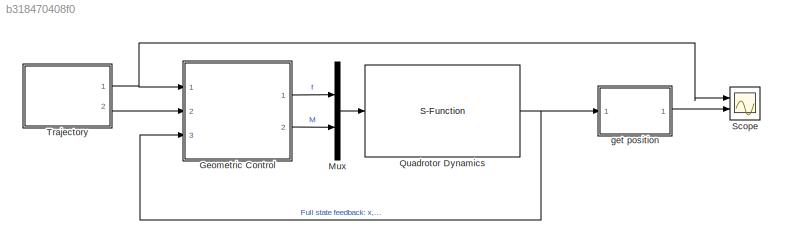
MODEL slx_b318470408f0
KIND model
CONFIG AbsTol = auto
CONFIG EnableMultiTasking = on
CONFIG FixedStep = 0.001
CONFIG InitFcn = param
CONFIG MaxStep = auto
CONFIG MinStep = auto
CONFIG RelTol = 1e-3
CONFIG SampleTimeConstraint = Unconstrained
CONFIG Solver = ode45
CONFIG SolverName = ode45
CONFIG StartTime = 0.0
CONFIG StopTime = 20
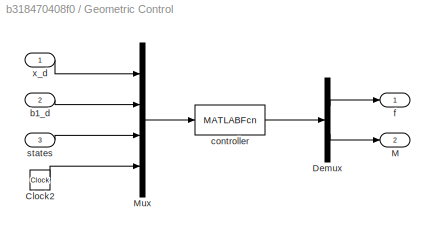
BLOCK [SubSystem] Geometric Control
  Ports = [3, 2]
  RequestExecContextInheritance = off
BLOCK [Clock] Geometric Control/Clock2
BLOCK [Demux] Geometric Control/Demux
  DisplayOption = bar
  Outputs = 2
  Ports = [1, 2]
BLOCK [Outport] Geometric Control/M
  IconDisplay = Port number
  Port = 2
  VectorParamsAs1DForOutWhenUnconnected = off
BLOCK [Mux] Geometric Control/Mux
  DisplayOption = bar
  Ports = [4, 1]
BLOCK [Inport] Geometric Control/b1_d
  IconDisplay = Port number
  Port = 2
BLOCK [MATLABFcn] Geometric Control/controller
  MATLABFcn = controller(u,P)
  OutputDimensions = 11
  Ports = [1, 1]
  SampleTime = P.Ts
BLOCK [Outport] Geometric Control/f
  IconDisplay = Port number
  VectorParamsAs1DForOutWhenUnconnected = off
BLOCK [Inport] Geometric Control/states
  IconDisplay = Port number
  Port = 3
BLOCK [Inport] Geometric Control/x_d
  IconDisplay = Port number
BLOCK [Mux] Mux
  DisplayOption = bar
  Inputs = 2
  Ports = [2, 1]
BLOCK [S-Function] Quadrotor Dynamics
  EnableBusSupport = off
  FunctionName = quad_dynamics
  Parameters = P
  Ports = [1, 1]
  SFcnIsStateOwnerBlock = off
  SFunctionDeploymentMode = off
BLOCK [Scope] Scope
  Floating = off
  NumInputPorts = 2
  Ports = [2]
  ScopeSpecificationString = Simulink.scopes.TimeScopeBlockCfg('CurrentConfiguration', extmgr.ConfigurationSet(extmgr.Configuration('Core','General UI',true),extmgr.Configuration('Core','Source UI',true),extmgr.Configuration('Sources','WiredSimulink',true),extmgr.Configuration('Visuals','Time Domain',true,'SerializedDisplays',{struct('MinYLimReal','-245.925','MaxYLimReal','2207.325','YLabelReal','','MinYLimMag',' 0.00000','Ma...<+1511ch>
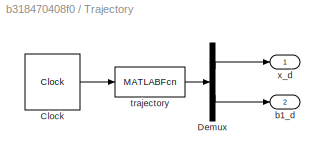
BLOCK [SubSystem] Trajectory
  Ports = [0, 2]
  RequestExecContextInheritance = off
BLOCK [Clock] Trajectory/Clock
  DisplayTime = on
BLOCK [Demux] Trajectory/Demux
  DisplayOption = bar
  Outputs = 2
  Ports = [1, 2]
BLOCK [Outport] Trajectory/b1_d
  IconDisplay = Port number
  Port = 2
  VectorParamsAs1DForOutWhenUnconnected = off
BLOCK [MATLABFcn] Trajectory/trajectory
  MATLABFcn = trajectory(u,P)
  OutputDimensions = 6
  Ports = [1, 1]
BLOCK [Outport] Trajectory/x_d
  IconDisplay = Port number
  VectorParamsAs1DForOutWhenUnconnected = off
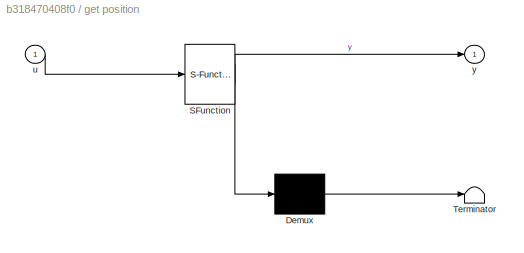
BLOCK [SubSystem] get position
  ErrorFcn = Stateflow.Translate.translate
  PermitHierarchicalResolution = ExplicitOnly
  Ports = [1, 1]
  RequestExecContextInheritance = off
  SFBlockType = MATLAB Function
  TreatAsAtomicUnit = on
BLOCK [Demux] get position/ Demux 
  Outputs = 1
  Ports = [1, 1]
BLOCK [S-Function] get position/ SFunction 
  EnableBusSupport = on
  FunctionName = sf_sfun
  PortCounts = [1 2]
  Ports = [1, 2]
  SFcnIsStateOwnerBlock = off
  SFunctionDeploymentMode = off
  Tag = Stateflow S-Function 2
BLOCK [Terminator] get position/ Terminator 
BLOCK [Inport] get position/u
  IconDisplay = Port number
BLOCK [Outport] get position/y
  IconDisplay = Port number
  VectorParamsAs1DForOutWhenUnconnected = off
LINE Geometric Control/Clock2:1 -> Geometric Control/Mux:4
LINE Geometric Control/Demux:1 -> Geometric Control/f:1
LINE Geometric Control/Demux:2 -> Geometric Control/M:1
LINE Geometric Control/Mux:1 -> Geometric Control/controller:1
LINE Geometric Control/b1_d:1 -> Geometric Control/Mux:2
LINE Geometric Control/controller:1 -> Geometric Control/Demux:1
LINE Geometric Control/states:1 -> Geometric Control/Mux:3
LINE Geometric Control/x_d:1 -> Geometric Control/Mux:1
LINE Geometric Control:1 -> Mux:1
LINE Geometric Control:2 -> Mux:2
LINE Mux:1 -> Quadrotor Dynamics:1
NET Quadrotor Dynamics:1 -> Geometric Control:3, get position:1
LINE Trajectory/Clock:1 -> Trajectory/trajectory:1
LINE Trajectory/Demux:1 -> Trajectory/x_d:1
LINE Trajectory/Demux:2 -> Trajectory/b1_d:1
LINE Trajectory/trajectory:1 -> Trajectory/Demux:1
NET Trajectory:1 -> Geometric Control:1, Scope:1
LINE Trajectory:2 -> Geometric Control:2
LINE get position:1 -> Scope:2
note: NET lines group one-source signal fan-out (src -> all destinations, sorted); 1:1 wires keep LINE
CHART get position states=1 transitions=1
  STATE_LABEL 'eML_blk_kernel()'
  STATE_LABEL 'SCRIPT:\nfunction y = fcn(u)\n\ny = u(1:3);\n'
